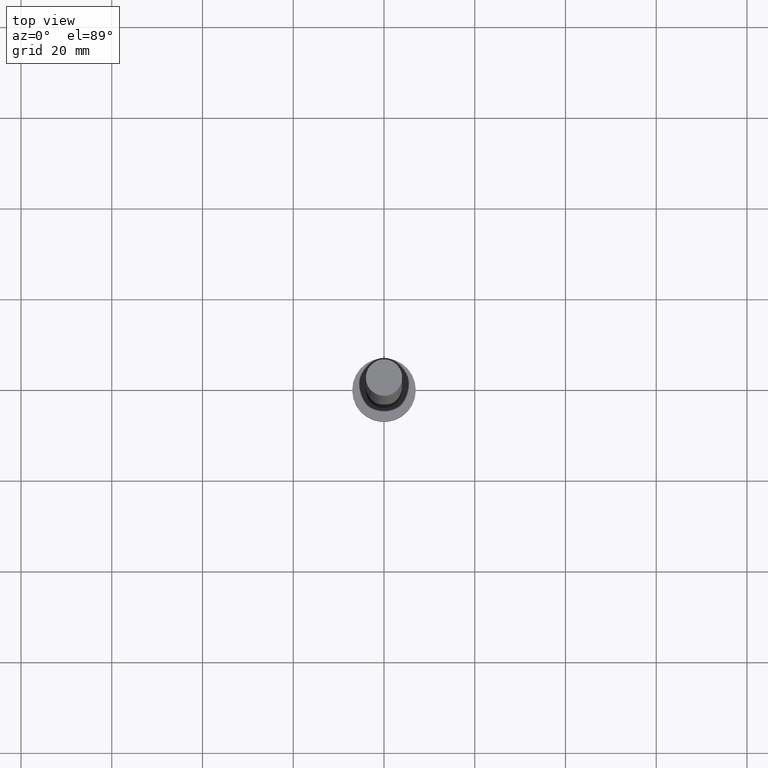
[diagram: clean part render]
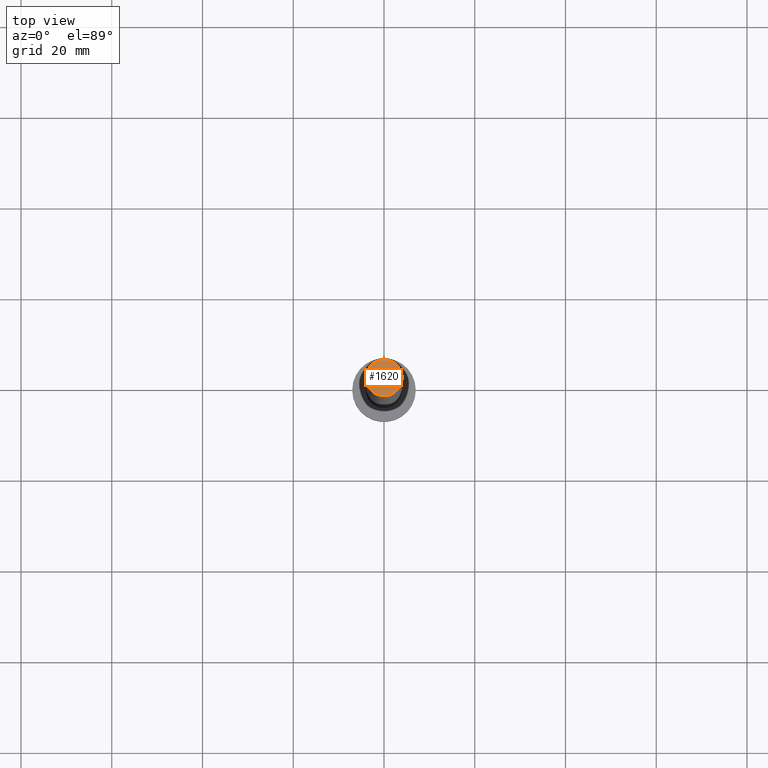
[diagram: same view with one face highlighted and labeled with its STEP entity id]
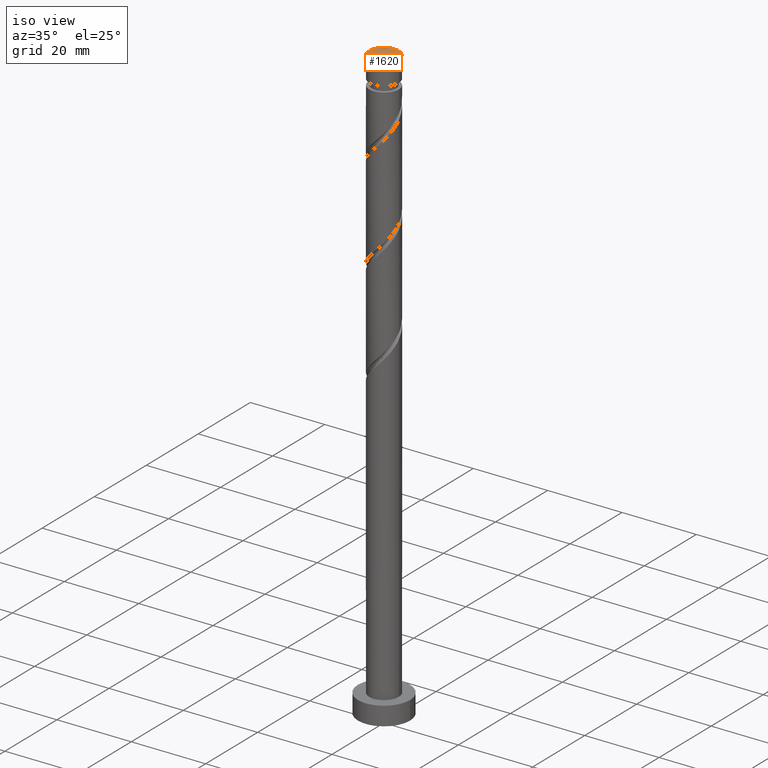
[diagram: same view with one face highlighted and labeled with its STEP entity id]
A machine part, top view. The second image highlights one B-rep face of the part: STEP entity #1620.
A second angle (iso view) of the same face is appended — the face is thin or edge-on in the first view.
In plain terms, the highlighted planar face has unit normal (0, 0, 1).
Its self-contained STEP definition (entity closure, byte-faithful):
#18 = CIRCLE ( 'NONE', #1005, 4.000000000000000000 ) ;
#65 = VERTEX_POINT ( 'NONE', #303 ) ;
#106 = CIRCLE ( 'NONE', #731, 4.000000000000000000 ) ;
#111 = DIRECTION ( 'NONE',  ( 0.000000000000000000, 0.000000000000000000, 1.000000000000000000 ) ) ;
#121 = CARTESIAN_POINT ( 'NONE',  ( 0.000000000000000000, 0.000000000000000000, 160.0000000000000000 ) ) ;
#144 = FACE_OUTER_BOUND ( 'NONE', #299, .T. ) ;
#147 = EDGE_CURVE ( 'NONE', #65, #1557, #106, .T. ) ;
#182 = CARTESIAN_POINT ( 'NONE',  ( 0.000000000000000000, 0.000000000000000000, 160.0000000000000000 ) ) ;
#228 = CARTESIAN_POINT ( 'NONE',  ( -4.000000000000000000, 0.000000000000000000, 160.0000000000000000 ) ) ;
#245 = DIRECTION ( 'NONE',  ( 0.000000000000000000, 0.000000000000000000, 1.000000000000000000 ) ) ;
#299 = EDGE_LOOP ( 'NONE', ( #1449, #570 ) ) ;
#303 = CARTESIAN_POINT ( 'NONE',  ( 4.000000000000000000, 4.898587196589412829E-16, 160.0000000000000000 ) ) ;
#519 = CARTESIAN_POINT ( 'NONE',  ( 0.000000000000000000, 0.000000000000000000, 160.0000000000000000 ) ) ;
#566 = DIRECTION ( 'NONE',  ( 0.000000000000000000, 0.000000000000000000, 1.000000000000000000 ) ) ;
#570 = ORIENTED_EDGE ( 'NONE', *, *, #147, .T. ) ;
#724 = EDGE_CURVE ( 'NONE', #1557, #65, #18, .T. ) ;
#731 = AXIS2_PLACEMENT_3D ( 'NONE', #182, #566, #1059 ) ;
#757 = AXIS2_PLACEMENT_3D ( 'NONE', #121, #111, #1524 ) ;
#1005 = AXIS2_PLACEMENT_3D ( 'NONE', #519, #245, #1411 ) ;
#1059 = DIRECTION ( 'NONE',  ( 1.000000000000000000, 0.000000000000000000, 0.000000000000000000 ) ) ;
#1411 = DIRECTION ( 'NONE',  ( 1.000000000000000000, 0.000000000000000000, 0.000000000000000000 ) ) ;
#1449 = ORIENTED_EDGE ( 'NONE', *, *, #724, .T. ) ;
#1516 = PLANE ( 'NONE',  #757 ) ;
#1524 = DIRECTION ( 'NONE',  ( 1.000000000000000000, 0.000000000000000000, -0.000000000000000000 ) ) ;
#1557 = VERTEX_POINT ( 'NONE', #228 ) ;
#1620 = ADVANCED_FACE ( 'NONE', ( #144 ), #1516, .T. ) ;